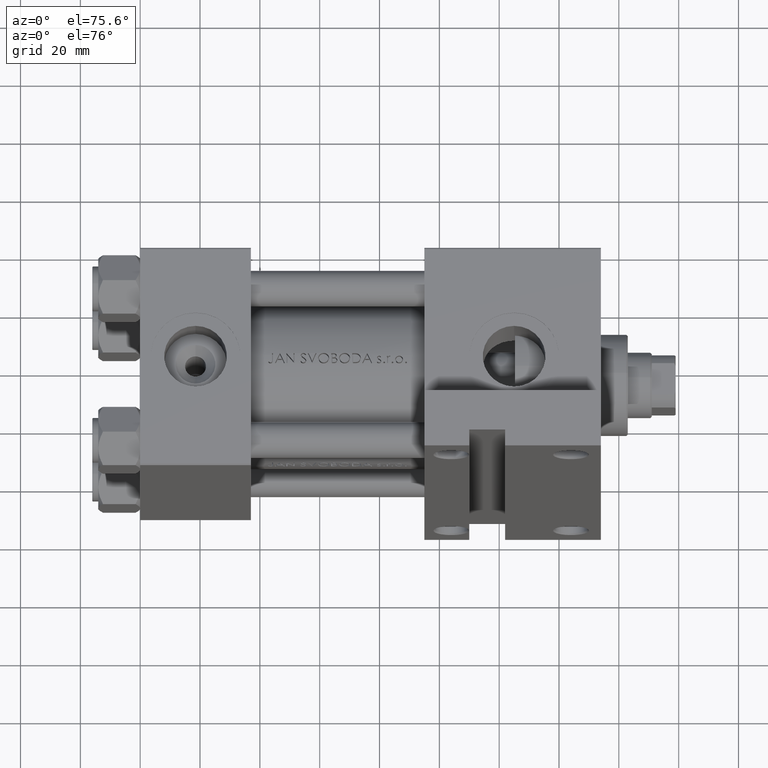
[diagram: clean part render]
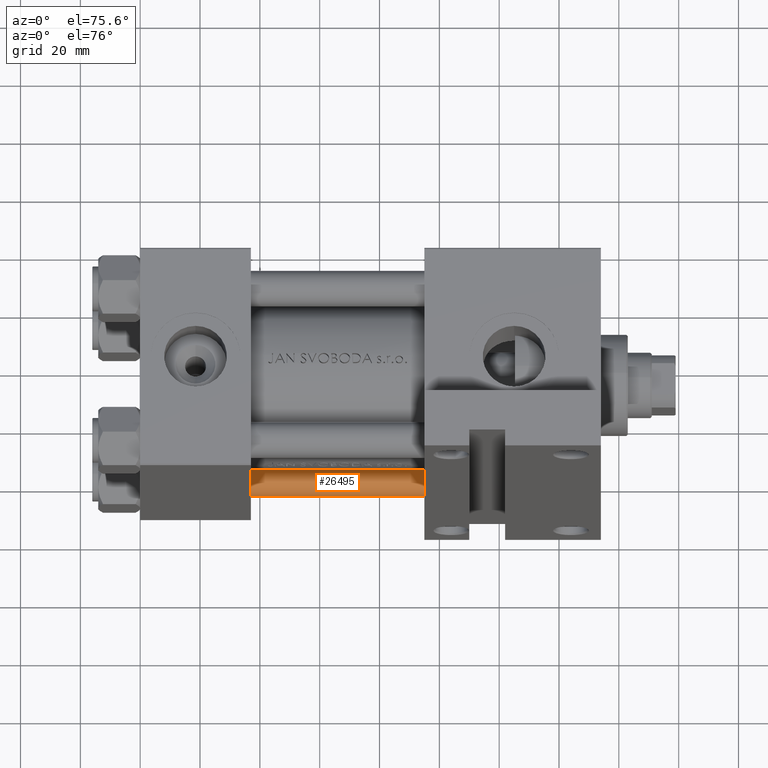
[diagram: same view with one face highlighted and labeled with its STEP entity id]
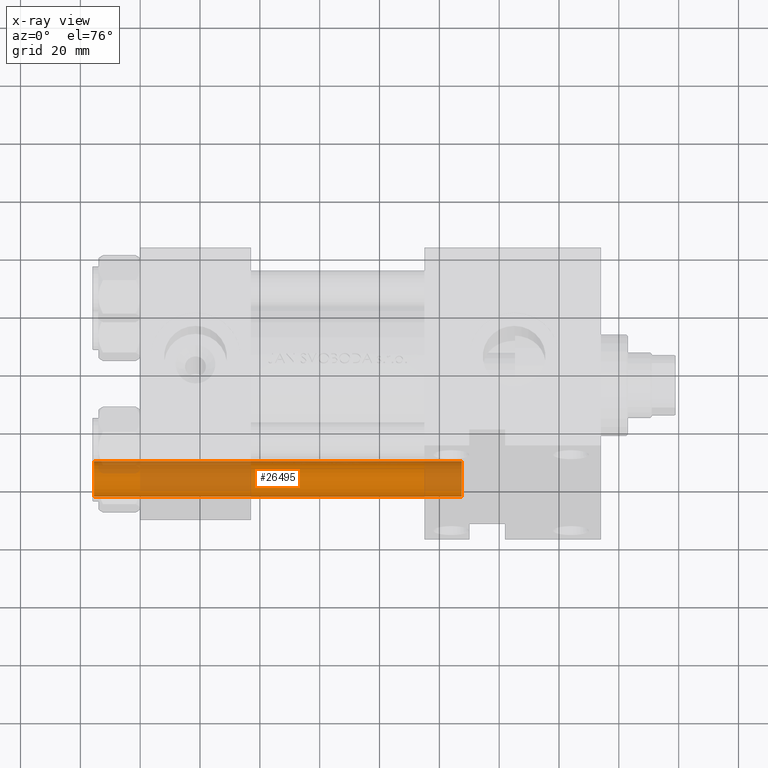
[diagram: x-ray of the same camera — body ghosted, the highlighted face saturated]
A machine part, auxiliary view. The second image highlights one B-rep face of the part: STEP entity #26495.
The next image is the same camera in x-ray: the body ghosted, the highlighted face saturated — about 41% of this face is hidden behind the body in this view.
In plain terms, the highlighted cylindrical surface (edge-blend (fillet) strip) has radius 6 mm, axis along (1, 0, 0).
Its self-contained STEP definition (entity closure, byte-faithful):
#2229 = VERTEX_POINT ( 'NONE', #35402 ) ;
#4924 = LINE ( 'NONE', #34297, #37901 ) ;
#8118 = CARTESIAN_POINT ( 'NONE',  ( 6.000000000000000888, 7.347880794884120722E-16, 0.4999999999999865663 ) ) ;
#8826 = DIRECTION ( 'NONE',  ( 0.000000000000000000, 0.000000000000000000, -1.000000000000000000 ) ) ;
#10144 = EDGE_CURVE ( 'NONE', #43638, #2229, #4924, .T. ) ;
#10389 = CYLINDRICAL_SURFACE ( 'NONE', #33686, 6.000000000000000888 ) ;
#13370 = DIRECTION ( 'NONE',  ( 1.000000000000000000, 0.000000000000000000, 0.000000000000000000 ) ) ;
#13857 = DIRECTION ( 'NONE',  ( -0.000000000000000000, -0.000000000000000000, -1.000000000000000000 ) ) ;
#14570 = CARTESIAN_POINT ( 'NONE',  ( 6.000000000000000888, 7.347880794884120722E-16, 124.0000000000000000 ) ) ;
#16630 = ORIENTED_EDGE ( 'NONE', *, *, #38255, .T. ) ;
#18077 = DIRECTION ( 'NONE',  ( -0.000000000000000000, -0.000000000000000000, -1.000000000000000000 ) ) ;
#25053 = VERTEX_POINT ( 'NONE', #8118 ) ;
#25890 = EDGE_LOOP ( 'NONE', ( #38146, #16630, #45537, #38154 ) ) ;
#25965 = AXIS2_PLACEMENT_3D ( 'NONE', #42831, #46214, #27627 ) ;
#26495 = ADVANCED_FACE ( 'NONE', ( #29390 ), #10389, .T. ) ;
#27627 = DIRECTION ( 'NONE',  ( 1.000000000000000000, 0.000000000000000000, 0.000000000000000000 ) ) ;
#27856 = EDGE_CURVE ( 'NONE', #25053, #2229, #46789, .T. ) ;
#29154 = DIRECTION ( 'NONE',  ( -1.000000000000000000, 0.000000000000000000, 0.000000000000000000 ) ) ;
#29390 = FACE_OUTER_BOUND ( 'NONE', #25890, .T. ) ;
#31671 = CARTESIAN_POINT ( 'NONE',  ( 0.000000000000000000, 0.000000000000000000, 123.5000000000000426 ) ) ;
#32016 = VECTOR ( 'NONE', #13857, 1000.000000000000000 ) ;
#32192 = CIRCLE ( 'NONE', #47617, 6.000000000000000888 ) ;
#32919 = EDGE_CURVE ( 'NONE', #43638, #42846, #32192, .T. ) ;
#33242 = CARTESIAN_POINT ( 'NONE',  ( 0.000000000000000000, 0.000000000000000000, 124.0000000000000000 ) ) ;
#33686 = AXIS2_PLACEMENT_3D ( 'NONE', #33242, #18077, #29154 ) ;
#34297 = CARTESIAN_POINT ( 'NONE',  ( -6.000000000000000888, 0.000000000000000000, 124.0000000000000000 ) ) ;
#35402 = CARTESIAN_POINT ( 'NONE',  ( -6.000000000000000888, 0.000000000000000000, 0.4999999999999865663 ) ) ;
#37901 = VECTOR ( 'NONE', #41813, 1000.000000000000000 ) ;
#38146 = ORIENTED_EDGE ( 'NONE', *, *, #32919, .T. ) ;
#38154 = ORIENTED_EDGE ( 'NONE', *, *, #10144, .F. ) ;
#38255 = EDGE_CURVE ( 'NONE', #42846, #25053, #39423, .T. ) ;
#39423 = LINE ( 'NONE', #14570, #32016 ) ;
#39755 = CARTESIAN_POINT ( 'NONE',  ( 6.000000000000000888, 7.347880794884120722E-16, 123.5000000000000426 ) ) ;
#41813 = DIRECTION ( 'NONE',  ( -0.000000000000000000, -0.000000000000000000, -1.000000000000000000 ) ) ;
#42831 = CARTESIAN_POINT ( 'NONE',  ( 0.000000000000000000, 0.000000000000000000, 0.4999999999999865663 ) ) ;
#42846 = VERTEX_POINT ( 'NONE', #39755 ) ;
#43638 = VERTEX_POINT ( 'NONE', #43969 ) ;
#43969 = CARTESIAN_POINT ( 'NONE',  ( -6.000000000000000888, 0.000000000000000000, 123.5000000000000426 ) ) ;
#45537 = ORIENTED_EDGE ( 'NONE', *, *, #27856, .T. ) ;
#46214 = DIRECTION ( 'NONE',  ( -0.000000000000000000, -0.000000000000000000, 1.000000000000000000 ) ) ;
#46789 = CIRCLE ( 'NONE', #25965, 6.000000000000000888 ) ;
#47617 = AXIS2_PLACEMENT_3D ( 'NONE', #31671, #8826, #13370 ) ;